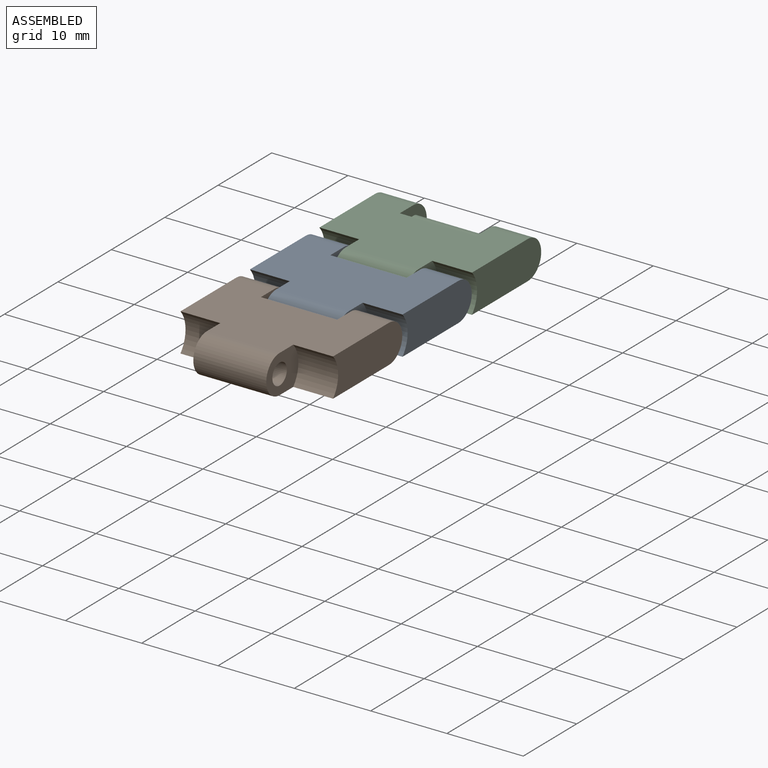
[diagram: assembled view]
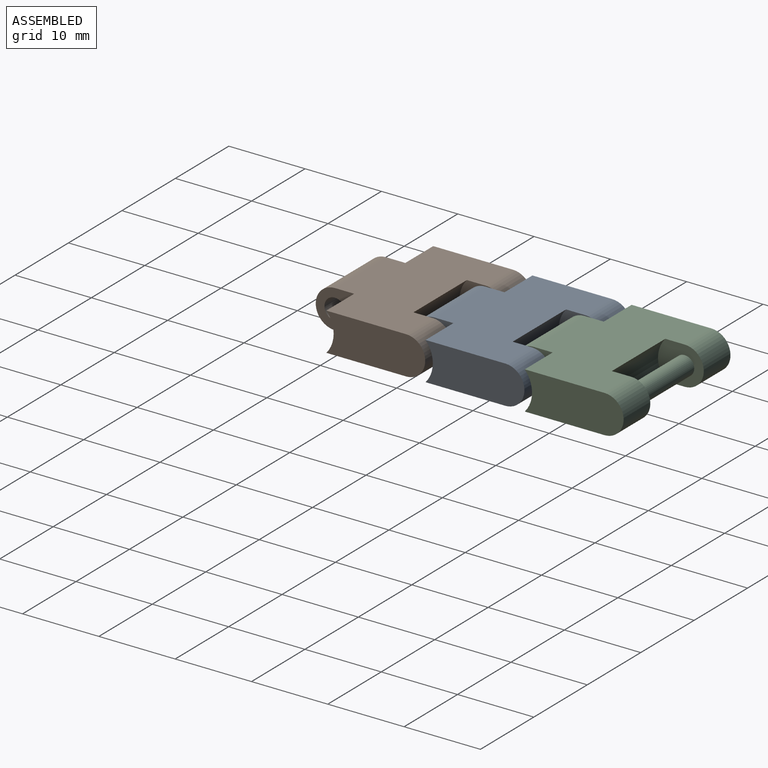
[diagram: assembled view, second angle]
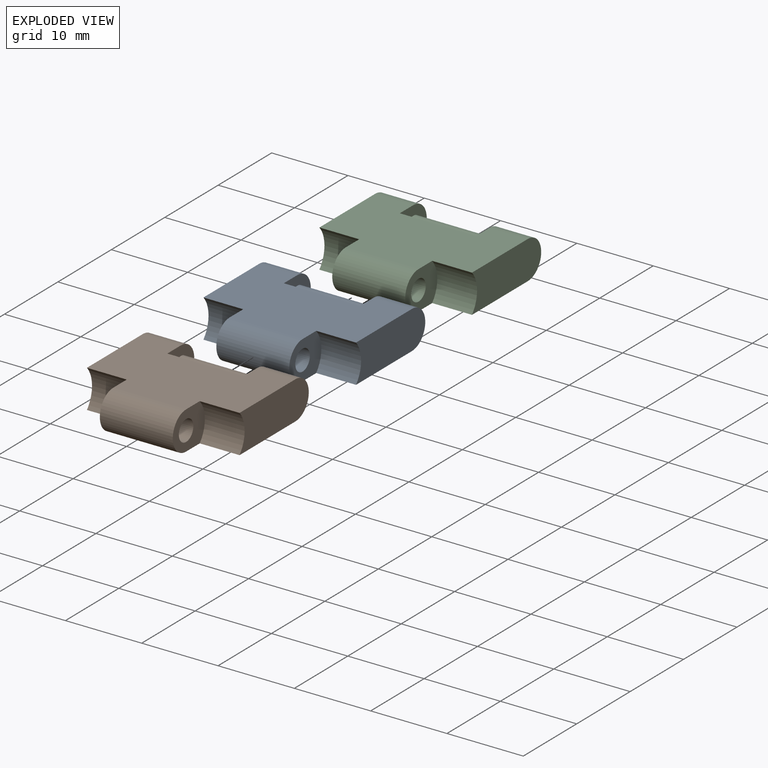
[diagram: exploded view]
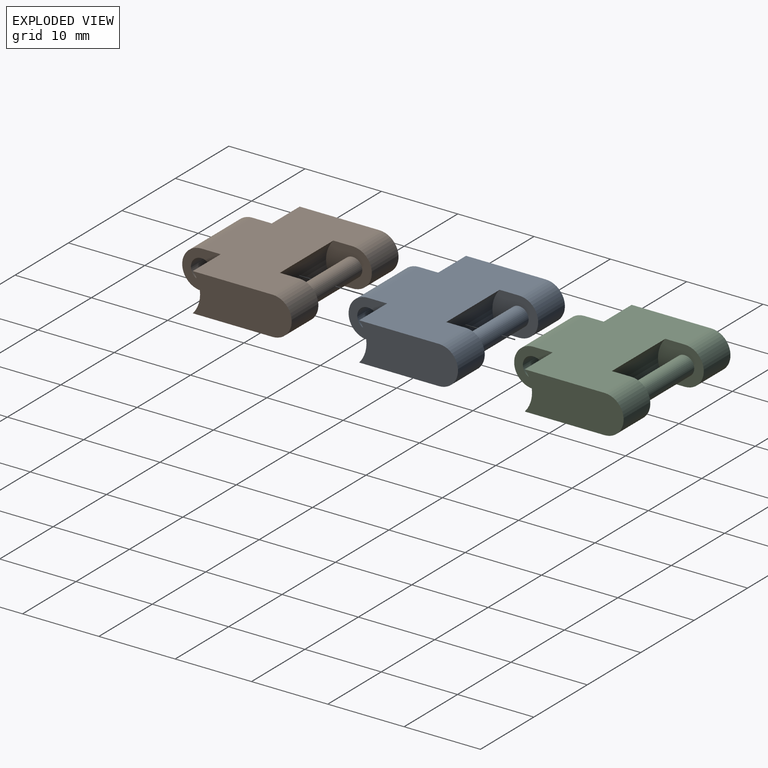
[diagram: exploded view, second angle]
ASSEMBLY  parts=3 mates=4
PART A: 16 faces, bbox 20x18x5 mm
  f0: plane 20x13mm, normal (0,0,-1), area 208mm2, adj f1,f2,f4,f5,f6,f7,f8,f11
  f1: cylinder r=2.5mm len=9.56mm, axis (-1,0,0), area 75.1mm2, adj f0,f3,f8,f15
  f2: cylinder r=2.5mm len=5mm, axis (-1,0,0), area 39.3mm2, adj f0,f3,f4,f6
  f3: plane 20x13mm, normal (0,0,1), area 208mm2, adj f1,f2,f4,f5,f6,f7,f8,f11
  f4: plane 12.96x5mm, normal (1,0,0), area 58.8mm2, adj f0,f2,f3,f7
  f5: cylinder r=3.75mm len=10mm, axis (-1,0,0), area 54.7mm2, adj f0,f3,f6,f13
  f6: plane 6x5mm, normal (-1,0,0), area 20.9mm2, adj f0,f2,f3,f5,f10
  f7: cylinder r=3.75mm len=5.22mm, axis (1,0,0), area 28.6mm2, adj f0,f3,f4,f8
  f8: plane 6x5mm, normal (1,0,0), area 20mm2, adj f0,f1,f3,f7,f9
  f9: cylinder r=1.36mm len=9.56mm, axis (1,0,0), area 81.7mm2, adj f8,f15
  f10: cylinder r=1.25mm len=10mm, axis (1,0,0), area 78.5mm2, adj f6,f13
  f11: cylinder r=2.5mm len=5mm, axis (1,0,0), area 39.3mm2, adj f0,f3,f12,f13
  f12: plane 12.96x5mm, normal (-1,0,0), area 58.8mm2, adj f0,f3,f11,f14
  f13: plane 6x5mm, normal (1,0,0), area 20.9mm2, adj f0,f3,f5,f10,f11
  f14: cylinder r=3.75mm len=5.22mm, axis (-1,0,0), area 28.6mm2, adj f0,f3,f12,f15
  f15: plane 6x5mm, normal (-1,0,0), area 20mm2, adj f0,f1,f3,f9,f14
PART B: same geometry as A
PART C: same geometry as A
PLACE A t=(1.08,5.51,-10.8)mm
PLACE B t=(1.08,-7.49,-10.8)mm
PLACE C t=(1.08,18.51,-10.8)mm
MATE planar C.f3 <-> A.f3  axis (0,0,1) through (1.08,18.54,-8.3)mm
MATE revolute B.f10 <-> A.f9  axis (1,0,0) through (1.08,-0.99,-10.8)mm
MATE planar A.f3 <-> B.f3  axis (0,0,1) through (1.08,5.54,-8.3)mm
MATE revolute A.f10 <-> C.f9  axis (1,0,0) through (1.08,12.01,-10.8)mm
